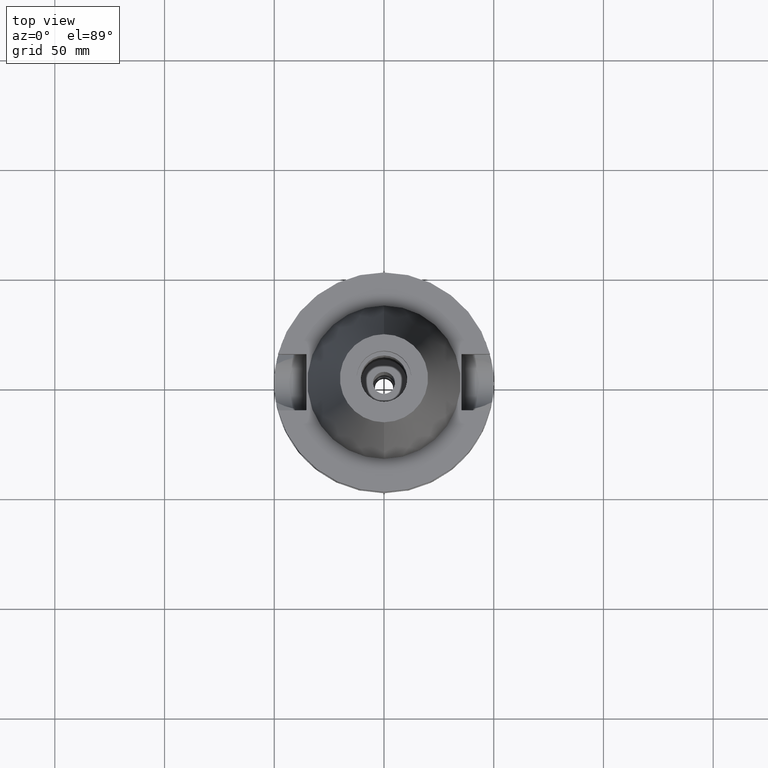
[diagram: clean part render]
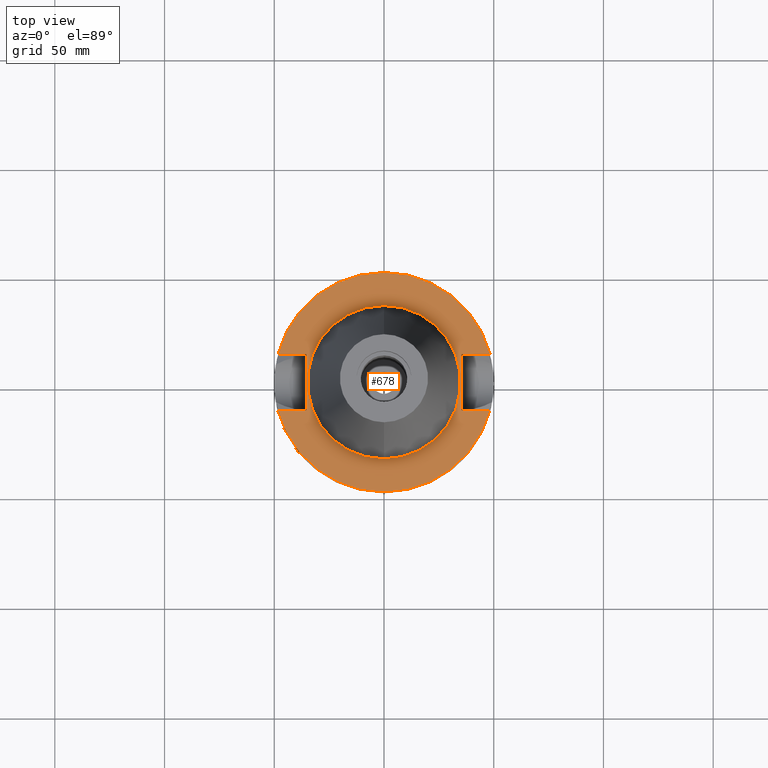
[diagram: same view with one face highlighted and labeled with its STEP entity id]
A machine part, top view. The second image highlights one B-rep face of the part: STEP entity #678.
In plain terms, the highlighted planar face has unit normal (0, 0, -1).
Its self-contained STEP definition (entity closure, byte-faithful):
#11 = DIRECTION ( 'NONE',  ( 0.0000000000000000000, 0.0000000000000000000, -1.000000000000000000 ) ) ;
#19 = CARTESIAN_POINT ( 'NONE',  ( -48.32057015392000210, -12.84999999999999964, -1.500000000000000000 ) ) ;
#43 = EDGE_CURVE ( 'NONE', #2553, #1276, #1282, .T. ) ;
#44 = LINE ( 'NONE', #560, #2307 ) ;
#73 = AXIS2_PLACEMENT_3D ( 'NONE', #2087, #1051, #594 ) ;
#105 = DIRECTION ( 'NONE',  ( 0.0000000000000000000, -1.000000000000000000, 0.0000000000000000000 ) ) ;
#225 = ORIENTED_EDGE ( 'NONE', *, *, #2209, .F. ) ;
#264 = VERTEX_POINT ( 'NONE', #1394 ) ;
#310 = VECTOR ( 'NONE', #2353, 1000.000000000000000 ) ;
#396 = VECTOR ( 'NONE', #3132, 1000.000000000000000 ) ;
#409 = AXIS2_PLACEMENT_3D ( 'NONE', #1158, #2134, #2859 ) ;
#443 = CARTESIAN_POINT ( 'NONE',  ( 0.0000000000000000000, 34.92499999999999716, -1.500000000000000000 ) ) ;
#448 = AXIS2_PLACEMENT_3D ( 'NONE', #1662, #1401, #2407 ) ;
#499 = VECTOR ( 'NONE', #105, 1000.000000000000000 ) ;
#548 = ORIENTED_EDGE ( 'NONE', *, *, #2168, .F. ) ;
#550 = ORIENTED_EDGE ( 'NONE', *, *, #1939, .F. ) ;
#560 = CARTESIAN_POINT ( 'NONE',  ( -35.39999999999999858, 12.84999999999999964, -1.500000000000000000 ) ) ;
#594 = DIRECTION ( 'NONE',  ( 0.0000000000000000000, 1.000000000000000000, 0.0000000000000000000 ) ) ;
#632 = CARTESIAN_POINT ( 'NONE',  ( 35.39999999999999858, 12.84999999999999964, -1.500000000000000000 ) ) ;
#671 = CARTESIAN_POINT ( 'NONE',  ( -35.39999999999999858, 12.84999999999999964, -1.500000000000000000 ) ) ;
#678 = ADVANCED_FACE ( 'NONE', ( #3151, #1428 ), #2870, .F. ) ;
#681 = CARTESIAN_POINT ( 'NONE',  ( 35.39999999999999858, 12.84999999999999964, -1.500000000000000000 ) ) ;
#682 = CARTESIAN_POINT ( 'NONE',  ( -35.39999999999999858, -12.84999999999999964, -1.500000000000000000 ) ) ;
#782 = DIRECTION ( 'NONE',  ( -1.000000000000000000, 0.0000000000000000000, 0.0000000000000000000 ) ) ;
#877 = VECTOR ( 'NONE', #942, 1000.000000000000000 ) ;
#921 = VERTEX_POINT ( 'NONE', #19 ) ;
#942 = DIRECTION ( 'NONE',  ( 1.000000000000000000, 0.0000000000000000000, 0.0000000000000000000 ) ) ;
#1000 = VERTEX_POINT ( 'NONE', #671 ) ;
#1032 = VERTEX_POINT ( 'NONE', #1135 ) ;
#1035 = DIRECTION ( 'NONE',  ( 0.0000000000000000000, -1.000000000000000000, 0.0000000000000000000 ) ) ;
#1051 = DIRECTION ( 'NONE',  ( 0.0000000000000000000, 0.0000000000000000000, -1.000000000000000000 ) ) ;
#1135 = CARTESIAN_POINT ( 'NONE',  ( -35.39999999999999858, -12.84999999999999964, -1.500000000000000000 ) ) ;
#1158 = CARTESIAN_POINT ( 'NONE',  ( 0.0000000000000000000, 2.652033875893999731E-14, -1.500000000000000000 ) ) ;
#1159 = LINE ( 'NONE', #682, #2352 ) ;
#1176 = CARTESIAN_POINT ( 'NONE',  ( 35.39999999999999858, -12.84999999999999964, -1.500000000000000000 ) ) ;
#1243 = CARTESIAN_POINT ( 'NONE',  ( 35.39999999999999858, -12.84999999999999964, -1.500000000000000000 ) ) ;
#1272 = CIRCLE ( 'NONE', #2603, 50.00000000000000000 ) ;
#1276 = VERTEX_POINT ( 'NONE', #1833 ) ;
#1282 = CIRCLE ( 'NONE', #73, 50.00000000000000000 ) ;
#1310 = DIRECTION ( 'NONE',  ( 0.0000000000000000000, 0.0000000000000000000, 1.000000000000000000 ) ) ;
#1360 = EDGE_CURVE ( 'NONE', #1626, #2641, #2144, .T. ) ;
#1365 = EDGE_CURVE ( 'NONE', #1889, #1824, #1453, .T. ) ;
#1381 = EDGE_CURVE ( 'NONE', #264, #1276, #2371, .T. ) ;
#1394 = CARTESIAN_POINT ( 'NONE',  ( 35.39999999999999858, 12.84999999999999964, -1.500000000000000000 ) ) ;
#1401 = DIRECTION ( 'NONE',  ( 0.0000000000000000000, 0.0000000000000000000, -1.000000000000000000 ) ) ;
#1423 = CARTESIAN_POINT ( 'NONE',  ( -35.39999999999999858, -12.84999999999999964, -1.500000000000000000 ) ) ;
#1428 = FACE_BOUND ( 'NONE', #1520, .T. ) ;
#1453 = CIRCLE ( 'NONE', #409, 34.92499999999999716 ) ;
#1464 = ORIENTED_EDGE ( 'NONE', *, *, #2866, .F. ) ;
#1493 = CARTESIAN_POINT ( 'NONE',  ( 0.0000000000000000000, 2.652033875893999731E-14, -1.500000000000000000 ) ) ;
#1520 = EDGE_LOOP ( 'NONE', ( #1533, #225 ) ) ;
#1528 = CARTESIAN_POINT ( 'NONE',  ( 0.0000000000000000000, 2.652033875893999731E-14, -1.500000000000000000 ) ) ;
#1533 = ORIENTED_EDGE ( 'NONE', *, *, #1365, .F. ) ;
#1626 = VERTEX_POINT ( 'NONE', #1243 ) ;
#1662 = CARTESIAN_POINT ( 'NONE',  ( 0.0000000000000000000, 1.206277097159999845E-14, -1.500000000000000000 ) ) ;
#1678 = CARTESIAN_POINT ( 'NONE',  ( 48.32057015392000210, -12.84999999999999964, -1.500000000000000000 ) ) ;
#1685 = CARTESIAN_POINT ( 'NONE',  ( 0.0000000000000000000, -34.92499999999999716, -1.500000000000000000 ) ) ;
#1698 = AXIS2_PLACEMENT_3D ( 'NONE', #1493, #1310, #1035 ) ;
#1703 = DIRECTION ( 'NONE',  ( -1.000000000000000000, 0.0000000000000000000, 0.0000000000000000000 ) ) ;
#1813 = ORIENTED_EDGE ( 'NONE', *, *, #3059, .F. ) ;
#1824 = VERTEX_POINT ( 'NONE', #1685 ) ;
#1833 = CARTESIAN_POINT ( 'NONE',  ( 48.32057015392000210, 12.84999999999999964, -1.500000000000000000 ) ) ;
#1889 = VERTEX_POINT ( 'NONE', #443 ) ;
#1939 = EDGE_CURVE ( 'NONE', #1032, #1000, #2164, .T. ) ;
#1948 = EDGE_LOOP ( 'NONE', ( #2496, #548, #2231, #1813, #2234, #3165, #1464, #550 ) ) ;
#2035 = EDGE_CURVE ( 'NONE', #1032, #921, #1159, .T. ) ;
#2087 = CARTESIAN_POINT ( 'NONE',  ( 0.0000000000000000000, 2.652033875893999731E-14, -1.500000000000000000 ) ) ;
#2134 = DIRECTION ( 'NONE',  ( 0.0000000000000000000, 0.0000000000000000000, 1.000000000000000000 ) ) ;
#2144 = LINE ( 'NONE', #1176, #310 ) ;
#2164 = LINE ( 'NONE', #1423, #396 ) ;
#2168 = EDGE_CURVE ( 'NONE', #2641, #921, #1272, .T. ) ;
#2209 = EDGE_CURVE ( 'NONE', #1824, #1889, #2768, .T. ) ;
#2231 = ORIENTED_EDGE ( 'NONE', *, *, #1360, .F. ) ;
#2234 = ORIENTED_EDGE ( 'NONE', *, *, #1381, .T. ) ;
#2302 = LINE ( 'NONE', #632, #499 ) ;
#2307 = VECTOR ( 'NONE', #782, 1000.000000000000000 ) ;
#2352 = VECTOR ( 'NONE', #1703, 1000.000000000000000 ) ;
#2353 = DIRECTION ( 'NONE',  ( 1.000000000000000000, 0.0000000000000000000, 0.0000000000000000000 ) ) ;
#2371 = LINE ( 'NONE', #681, #877 ) ;
#2407 = DIRECTION ( 'NONE',  ( 0.0000000000000000000, -1.000000000000000000, 0.0000000000000000000 ) ) ;
#2486 = DIRECTION ( 'NONE',  ( 0.0000000000000000000, -1.000000000000000000, 0.0000000000000000000 ) ) ;
#2496 = ORIENTED_EDGE ( 'NONE', *, *, #2035, .T. ) ;
#2553 = VERTEX_POINT ( 'NONE', #2663 ) ;
#2603 = AXIS2_PLACEMENT_3D ( 'NONE', #1528, #11, #2486 ) ;
#2641 = VERTEX_POINT ( 'NONE', #1678 ) ;
#2663 = CARTESIAN_POINT ( 'NONE',  ( -48.32057015392000210, 12.84999999999999964, -1.500000000000000000 ) ) ;
#2768 = CIRCLE ( 'NONE', #1698, 34.92499999999999716 ) ;
#2859 = DIRECTION ( 'NONE',  ( 0.0000000000000000000, 1.000000000000000000, 0.0000000000000000000 ) ) ;
#2866 = EDGE_CURVE ( 'NONE', #1000, #2553, #44, .T. ) ;
#2870 = PLANE ( 'NONE',  #448 ) ;
#3059 = EDGE_CURVE ( 'NONE', #264, #1626, #2302, .T. ) ;
#3132 = DIRECTION ( 'NONE',  ( 0.0000000000000000000, 1.000000000000000000, 0.0000000000000000000 ) ) ;
#3151 = FACE_OUTER_BOUND ( 'NONE', #1948, .T. ) ;
#3165 = ORIENTED_EDGE ( 'NONE', *, *, #43, .F. ) ;